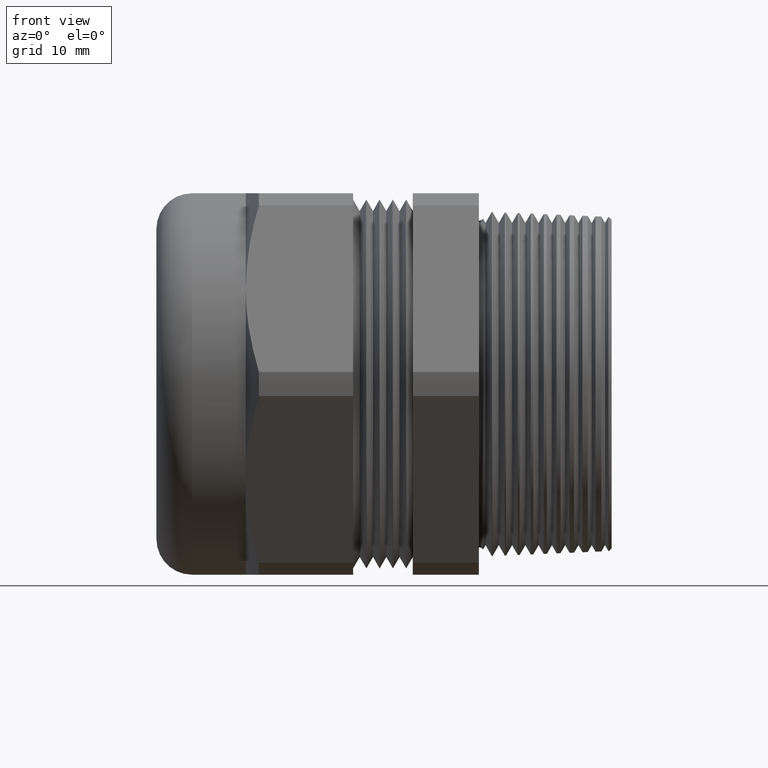
[diagram: clean part render]
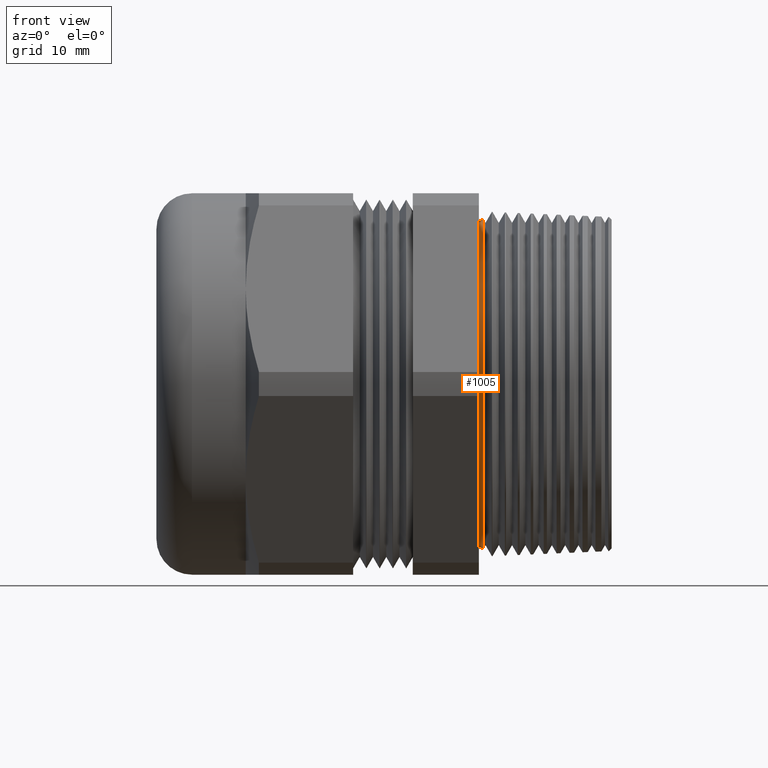
[diagram: same view with one face highlighted and labeled with its STEP entity id]
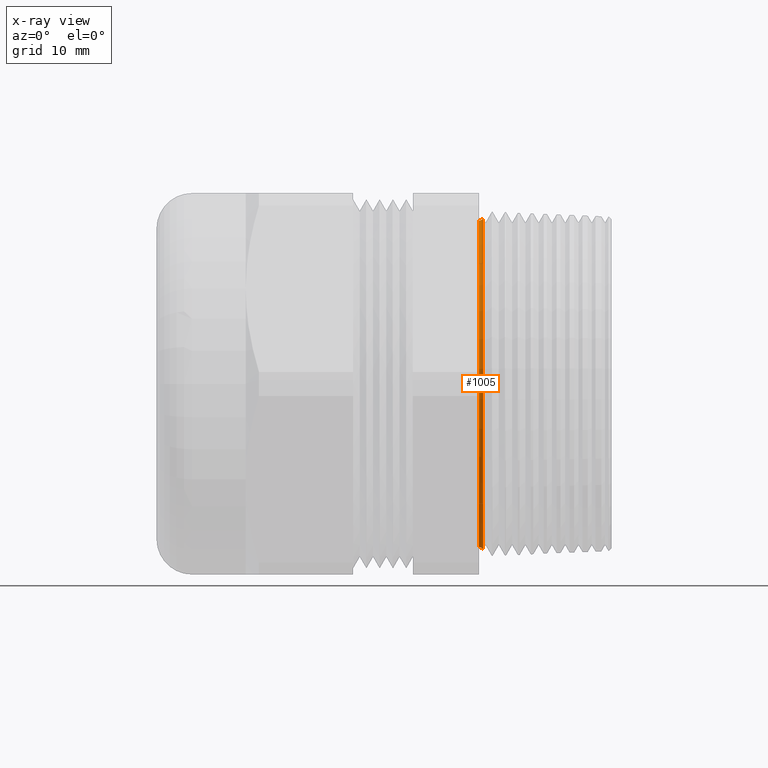
[diagram: x-ray of the same camera — body ghosted, the highlighted face saturated]
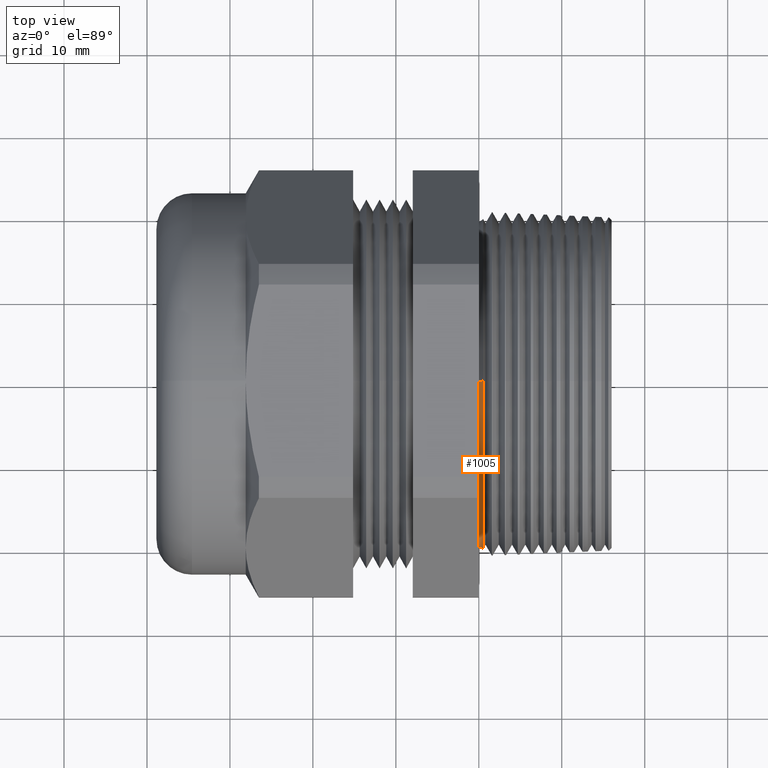
[diagram: same view with one face highlighted and labeled with its STEP entity id]
A machine part, front view. The second image highlights one B-rep face of the part: STEP entity #1005.
The next image is the same camera in x-ray: the body ghosted, the highlighted face saturated — about 0% of this face is hidden behind the body in this view.
A second angle (top view) of the same face is appended — the face is thin or edge-on in the first view.
In plain terms, the highlighted toroidal blend (fillet) surface has major radius 20.32 mm and minor (blend) radius 0.635 mm.
Its self-contained STEP definition (entity closure, byte-faithful):
#827 = EDGE_CURVE ( 'NONE', #974, #976, #3554, .T. ) ;
#961 = ORIENTED_EDGE ( 'NONE', *, *, #1028, .T. ) ;
#974 = VERTEX_POINT ( 'NONE', #2773 ) ;
#975 = VERTEX_POINT ( 'NONE', #2772 ) ;
#976 = VERTEX_POINT ( 'NONE', #2771 ) ;
#1005 = ADVANCED_FACE ( 'NONE', ( #2950 ), #2949, .F. ) ;
#1008 = VERTEX_POINT ( 'NONE', #2939 ) ;
#1028 = EDGE_CURVE ( 'NONE', #975, #976, #2972, .T. ) ;
#1029 = ORIENTED_EDGE ( 'NONE', *, *, #827, .F. ) ;
#1031 = ORIENTED_EDGE ( 'NONE', *, *, #1076, .T. ) ;
#1067 = EDGE_LOOP ( 'NONE', ( #1031, #961, #1029, #1126 ) ) ;
#1076 = EDGE_CURVE ( 'NONE', #1008, #975, #3238, .T. ) ;
#1126 = ORIENTED_EDGE ( 'NONE', *, *, #1133, .F. ) ;
#1133 = EDGE_CURVE ( 'NONE', #1008, #974, #3161, .T. ) ;
#2771 = CARTESIAN_POINT ( 'NONE',  ( -3.061616997868358500E-018, 0.0000000000000000000, -0.7750000000000000200 ) ) ;
#2772 = CARTESIAN_POINT ( 'NONE',  ( -3.061616997868358500E-018, 9.491012693391988500E-017, 0.7750000000000000200 ) ) ;
#2773 = CARTESIAN_POINT ( 'NONE',  ( 0.02011669327523664400, 9.615398417553493400E-017, -0.7851568651670104400 ) ) ;
#2939 = CARTESIAN_POINT ( 'NONE',  ( 0.02011669327523664400, 0.0000000000000000000, 0.7851568651670104400 ) ) ;
#2945 = DIRECTION ( 'NONE',  ( 0.0000000000000000000, 0.0000000000000000000, -1.000000000000000000 ) ) ;
#2946 = DIRECTION ( 'NONE',  ( 1.000000000000000000, 0.0000000000000000000, 0.0000000000000000000 ) ) ;
#2947 = CARTESIAN_POINT ( 'NONE',  ( 0.0000000000000000000, 0.0000000000000000000, 0.0000000000000000000 ) ) ;
#2948 = AXIS2_PLACEMENT_3D ( 'NONE', #2947, #2946, #2945 ) ;
#2949 = TOROIDAL_SURFACE ( 'NONE', #2948, 0.7999999999999999300, 0.02499999999999983500 ) ;
#2950 = FACE_OUTER_BOUND ( 'NONE', #1067, .T. ) ;
#2969 = DIRECTION ( 'NONE',  ( 0.0000000000000000000, 0.0000000000000000000, -1.000000000000000000 ) ) ;
#2970 = DIRECTION ( 'NONE',  ( 1.000000000000000000, 0.0000000000000000000, 0.0000000000000000000 ) ) ;
#2971 = AXIS2_PLACEMENT_3D ( 'NONE', #2977, #2970, #2969 ) ;
#2972 = CIRCLE ( 'NONE', #2971, 0.7750000000000000200 ) ;
#2977 = CARTESIAN_POINT ( 'NONE',  ( -3.061616997868362800E-018, 0.0000000000000000000, 0.0000000000000000000 ) ) ;
#3157 = DIRECTION ( 'NONE',  ( 0.0000000000000000000, 0.0000000000000000000, 1.000000000000000000 ) ) ;
#3158 = DIRECTION ( 'NONE',  ( 1.000000000000000000, 0.0000000000000000000, 0.0000000000000000000 ) ) ;
#3159 = CARTESIAN_POINT ( 'NONE',  ( 0.02011669327523664400, 0.0000000000000000000, 0.0000000000000000000 ) ) ;
#3160 = AXIS2_PLACEMENT_3D ( 'NONE', #3159, #3158, #3157 ) ;
#3161 = CIRCLE ( 'NONE', #3160, 0.7851568651670104400 ) ;
#3234 = DIRECTION ( 'NONE',  ( 0.0000000000000000000, 1.224646799147352200E-016, 1.000000000000000000 ) ) ;
#3235 = DIRECTION ( 'NONE',  ( 0.0000000000000000000, 1.000000000000000000, -1.224646799147353200E-016 ) ) ;
#3236 = CARTESIAN_POINT ( 'NONE',  ( 0.0000000000000000000, 9.797174393178824900E-017, 0.7999999999999999300 ) ) ;
#3237 = AXIS2_PLACEMENT_3D ( 'NONE', #3236, #3235, #3234 ) ;
#3238 = CIRCLE ( 'NONE', #3237, 0.02499999999999987000 ) ;
#3550 = DIRECTION ( 'NONE',  ( 0.0000000000000000000, 0.0000000000000000000, -1.000000000000000000 ) ) ;
#3551 = DIRECTION ( 'NONE',  ( 0.0000000000000000000, -1.000000000000000000, 0.0000000000000000000 ) ) ;
#3552 = CARTESIAN_POINT ( 'NONE',  ( 0.0000000000000000000, 0.0000000000000000000, -0.7999999999999999300 ) ) ;
#3553 = AXIS2_PLACEMENT_3D ( 'NONE', #3552, #3551, #3550 ) ;
#3554 = CIRCLE ( 'NONE', #3553, 0.02499999999999987000 ) ;